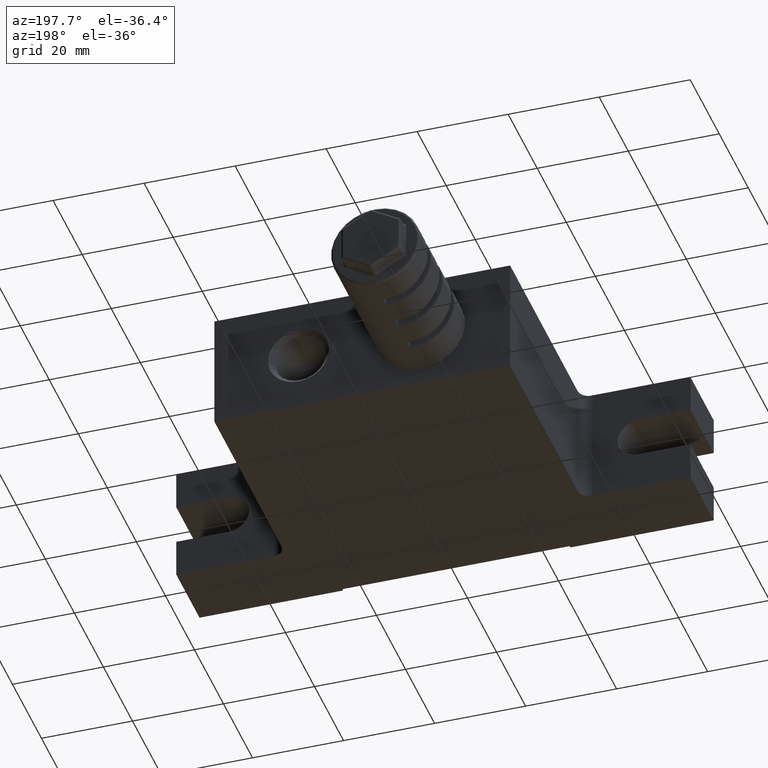
[diagram: clean part render]
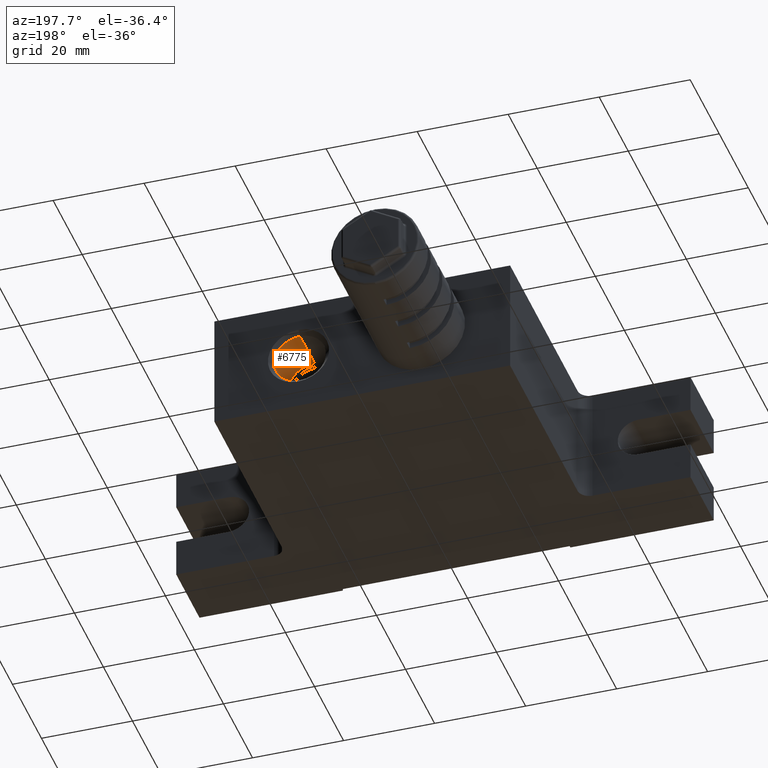
[diagram: same view with one face highlighted and labeled with its STEP entity id]
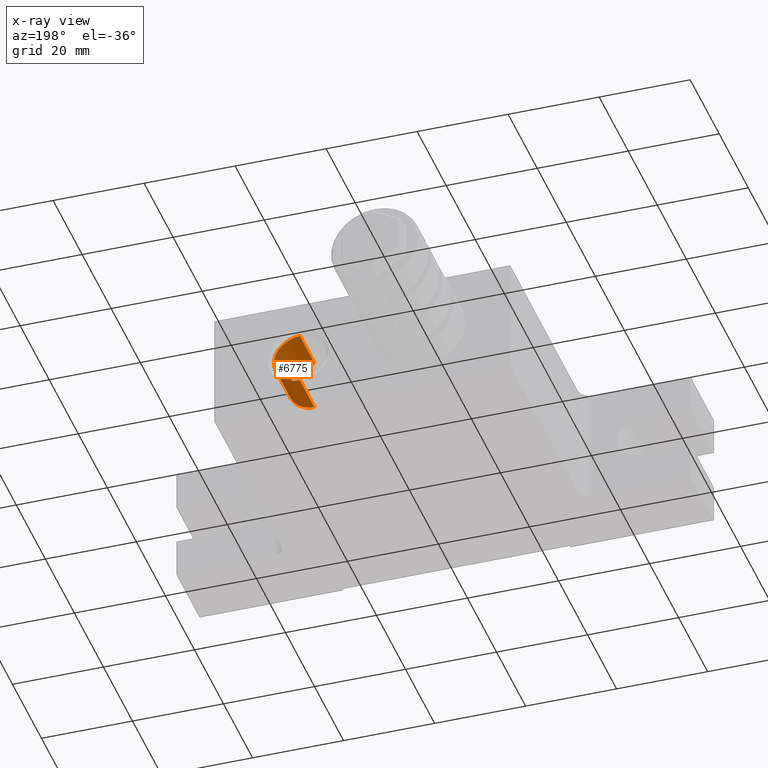
[diagram: x-ray of the same camera — body ghosted, the highlighted face saturated]
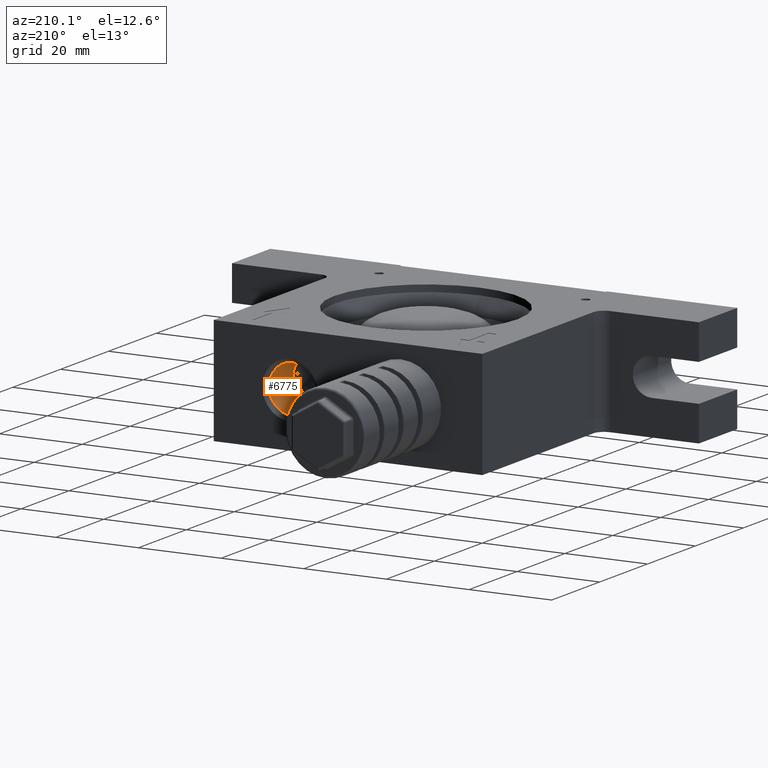
[diagram: same view with one face highlighted and labeled with its STEP entity id]
A machine part, auxiliary view. The second image highlights one B-rep face of the part: STEP entity #6775.
The next image is the same camera in x-ray: the body ghosted, the highlighted face saturated — about 0% of this face is hidden behind the body in this view.
A second angle (auxiliary view) of the same face is appended — the face is thin or edge-on in the first view.
In plain terms, the highlighted cylindrical surface (edge-blend (fillet) strip) has radius 5.7225 mm, axis along (0, 1, 0).
Its self-contained STEP definition (entity closure, byte-faithful):
#187 = LINE ( 'NONE', #223, #690 ) ;
#223 = CARTESIAN_POINT ( 'NONE',  ( 14.00000000000000000, 32.50000000000000000, 5.722500000000000100 ) ) ;
#235 = EDGE_LOOP ( 'NONE', ( #2553, #4810, #5156, #3845 ) ) ;
#405 = CARTESIAN_POINT ( 'NONE',  ( 14.00000000000000000, 32.50000000000000000, -5.722500000000000100 ) ) ;
#690 = VECTOR ( 'NONE', #4513, 1000.000000000000000 ) ;
#755 = DIRECTION ( 'NONE',  ( 0.0000000000000000000, 1.000000000000000000, 0.0000000000000000000 ) ) ;
#941 = FACE_OUTER_BOUND ( 'NONE', #235, .T. ) ;
#1030 = AXIS2_PLACEMENT_3D ( 'NONE', #5679, #4526, #4621 ) ;
#1458 = AXIS2_PLACEMENT_3D ( 'NONE', #1790, #755, #6131 ) ;
#1466 = CYLINDRICAL_SURFACE ( 'NONE', #1458, 5.722500000000000100 ) ;
#1790 = CARTESIAN_POINT ( 'NONE',  ( 14.00000000000000000, 32.50000000000000000, 0.0000000000000000000 ) ) ;
#2429 = CARTESIAN_POINT ( 'NONE',  ( 14.00000000000000000, 31.50000000000000000, -5.722500000000000100 ) ) ;
#2533 = DIRECTION ( 'NONE',  ( 0.0000000000000000000, 0.0000000000000000000, -1.000000000000000000 ) ) ;
#2553 = ORIENTED_EDGE ( 'NONE', *, *, #3413, .F. ) ;
#2583 = CARTESIAN_POINT ( 'NONE',  ( 14.00000000000000000, 31.50000000000000000, 0.0000000000000000000 ) ) ;
#2769 = VERTEX_POINT ( 'NONE', #6106 ) ;
#2915 = VERTEX_POINT ( 'NONE', #2429 ) ;
#2974 = CARTESIAN_POINT ( 'NONE',  ( 14.00000000000000000, 31.50000000000000000, 5.722500000000000100 ) ) ;
#3015 = VERTEX_POINT ( 'NONE', #5246 ) ;
#3283 = LINE ( 'NONE', #405, #5323 ) ;
#3413 = EDGE_CURVE ( 'NONE', #2769, #2915, #3283, .T. ) ;
#3845 = ORIENTED_EDGE ( 'NONE', *, *, #4599, .T. ) ;
#4513 = DIRECTION ( 'NONE',  ( 0.0000000000000000000, 1.000000000000000000, 0.0000000000000000000 ) ) ;
#4526 = DIRECTION ( 'NONE',  ( 0.0000000000000000000, 1.000000000000000000, 0.0000000000000000000 ) ) ;
#4599 = EDGE_CURVE ( 'NONE', #5198, #2915, #6326, .T. ) ;
#4621 = DIRECTION ( 'NONE',  ( 0.0000000000000000000, 0.0000000000000000000, 1.000000000000000000 ) ) ;
#4810 = ORIENTED_EDGE ( 'NONE', *, *, #5177, .F. ) ;
#5156 = ORIENTED_EDGE ( 'NONE', *, *, #6123, .T. ) ;
#5177 = EDGE_CURVE ( 'NONE', #3015, #2769, #5373, .T. ) ;
#5198 = VERTEX_POINT ( 'NONE', #2974 ) ;
#5246 = CARTESIAN_POINT ( 'NONE',  ( 14.00000000000000000, 21.50000000000000000, 5.722500000000000100 ) ) ;
#5323 = VECTOR ( 'NONE', #6432, 1000.000000000000000 ) ;
#5373 = CIRCLE ( 'NONE', #1030, 5.722500000000000100 ) ;
#5679 = CARTESIAN_POINT ( 'NONE',  ( 14.00000000000000000, 21.50000000000000000, 0.0000000000000000000 ) ) ;
#6106 = CARTESIAN_POINT ( 'NONE',  ( 14.00000000000000000, 21.50000000000000000, -5.722500000000000100 ) ) ;
#6123 = EDGE_CURVE ( 'NONE', #3015, #5198, #187, .T. ) ;
#6131 = DIRECTION ( 'NONE',  ( 0.0000000000000000000, 0.0000000000000000000, 1.000000000000000000 ) ) ;
#6326 = CIRCLE ( 'NONE', #6531, 5.722500000000000100 ) ;
#6377 = DIRECTION ( 'NONE',  ( -0.0000000000000000000, 1.000000000000000000, -0.0000000000000000000 ) ) ;
#6432 = DIRECTION ( 'NONE',  ( 0.0000000000000000000, 1.000000000000000000, 0.0000000000000000000 ) ) ;
#6531 = AXIS2_PLACEMENT_3D ( 'NONE', #2583, #6377, #2533 ) ;
#6775 = ADVANCED_FACE ( 'NONE', ( #941 ), #1466, .F. ) ;